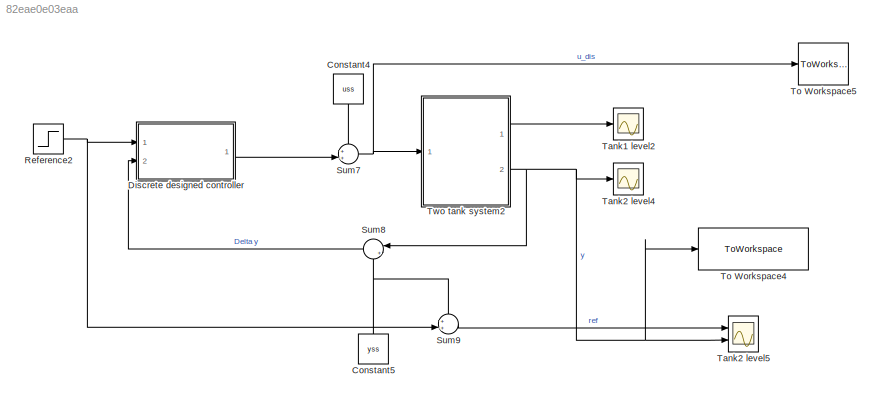
MODEL slx_82eae0e03eaa
KIND model
CONFIG AbsTol = auto
CONFIG EnableMultiTasking = off
CONFIG FixedStep = auto
CONFIG MaxStep = auto
CONFIG MinStep = auto
CONFIG RelTol = 1e-3
CONFIG SampleTimeConstraint = Unconstrained
CONFIG SolverName = VariableStepAuto
CONFIG StartTime = 0.0
CONFIG StopTime = 200
BLOCK [Constant] Constant4
  NameLocation = left
  Value = uss
BLOCK [Constant] Constant5
  NameLocation = right
  Value = yss
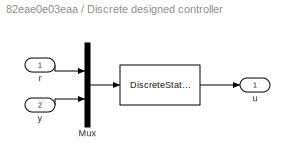
BLOCK [SubSystem] Discrete designed controller
  Ports = [2, 1]
  RequestExecContextInheritance = off
BLOCK [DiscreteStateSpace] Discrete designed controller/ 
  A = Phi-Gamma*L-K*C
  B = [lr * Gamma K]
  C = -L
  D = [lr 0]
  NameLocation = top
  SampleTime = Ts
BLOCK [Mux] Discrete designed controller/Mux
  DisplayOption = bar
  Inputs = 2
  Ports = [2, 1]
BLOCK [Inport] Discrete designed controller/r
BLOCK [Outport] Discrete designed controller/u
BLOCK [Inport] Discrete designed controller/y
  Port = 2
BLOCK [Step] Reference2
  After = 10
  SampleTime = 0
  Time = 25
BLOCK [Sum] Sum7
  Inputs = ++|
  NameLocation = top
  Ports = [2, 1]
BLOCK [Sum] Sum8
  Inputs = |+-
  Ports = [2, 1]
BLOCK [Sum] Sum9
  Inputs = ++|
  NameLocation = top
  Ports = [2, 1]
BLOCK [Scope] Tank1 level2
  Floating = off
  NumInputPorts = 1
  Ports = [1]
  ScopeSpecificationString = Simulink.scopes.TimeScopeBlockCfg('CurrentConfiguration', extmgr.ConfigurationSet(extmgr.Configuration('Core','General UI',true),extmgr.Configuration('Core','Source UI',true),extmgr.Configuration('Sources','WiredSimulink',true,'DataLoggingSaveFormat','StructureWithTime','DataLoggingLimitDataPoints',true,'DataLoggingDecimation','1','DataLoggingDecimateData',true,'DataLoggingVariableName','ScopeData...<+1711ch>
BLOCK [Scope] Tank2 level4
  Floating = off
  NumInputPorts = 1
  Ports = [1]
  ScopeSpecificationString = Simulink.scopes.TimeScopeBlockCfg('CurrentConfiguration', extmgr.ConfigurationSet(extmgr.Configuration('Core','General UI',true),extmgr.Configuration('Core','Source UI',true),extmgr.Configuration('Sources','WiredSimulink',true,'DataLoggingSaveFormat','StructureWithTime','DataLoggingDecimation','1','DataLoggingDecimateData',true,'DataLoggingVariableName','ScopeData2'),extmgr.Configuration('Visuals'...<+1689ch>
BLOCK [Scope] Tank2 level5
  Floating = off
  NumInputPorts = 2
  Ports = [2]
  ScopeSpecificationString = Simulink.scopes.TimeScopeBlockCfg('CurrentConfiguration', extmgr.ConfigurationSet(extmgr.Configuration('Core','General UI',true,'FigureColor',[1 1 1]),extmgr.Configuration('Core','Source UI',true),extmgr.Configuration('Sources','WiredSimulink',true,'DataLoggingSaveFormat','StructureWithTime','DataLoggingDecimation','1','DataLoggingDecimateData',true,'DataLoggingVariableName','ScopeData3'),extmgr.C...<+2076ch>
BLOCK [ToWorkspace] To Workspace4
  MaxDataPoints = inf
  Ports = [1]
  SampleTime = -1
  Save2DSignal = 2-D array (concatenate along first dimension)
  SaveFormat = Structure With Time
  VariableName = tanksDis_designed_out
BLOCK [ToWorkspace] To Workspace5
  MaxDataPoints = inf
  Ports = [1]
  SampleTime = -1
  Save2DSignal = 2-D array (concatenate along first dimension)
  SaveFormat = Structure With Time
  VariableName = u_dis_designed
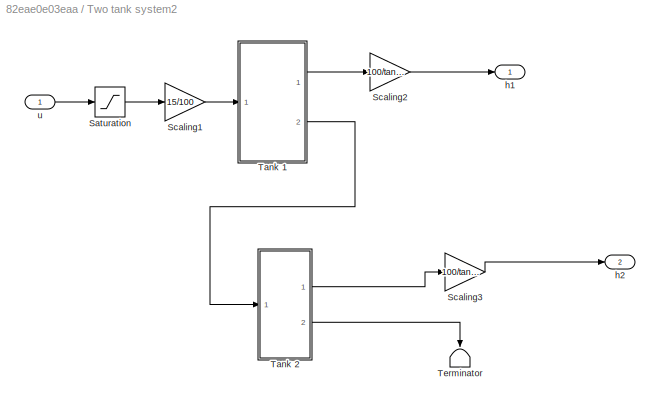
BLOCK [SubSystem] Two tank system2
  Ports = [1, 2]
  RequestExecContextInheritance = off
BLOCK [Saturate] Two tank system2/Saturation
  LowerLimit = -0
  UpperLimit = 100
BLOCK [Gain] Two tank system2/Scaling1
  Gain = 15/100
  OutDataTypeStr = Inherit: Same as input
  ParamDataTypeStr = Inherit: Same as input
  SaturateOnIntegerOverflow = on
BLOCK [Gain] Two tank system2/Scaling2
  Gain = 100/tank_H1
  OutDataTypeStr = Inherit: Same as input
  ParamDataTypeStr = Inherit: Same as input
  SaturateOnIntegerOverflow = on
BLOCK [Gain] Two tank system2/Scaling3
  Gain = 100/tank_H2
  OutDataTypeStr = Inherit: Same as input
  ParamDataTypeStr = Inherit: Same as input
  SaturateOnIntegerOverflow = on
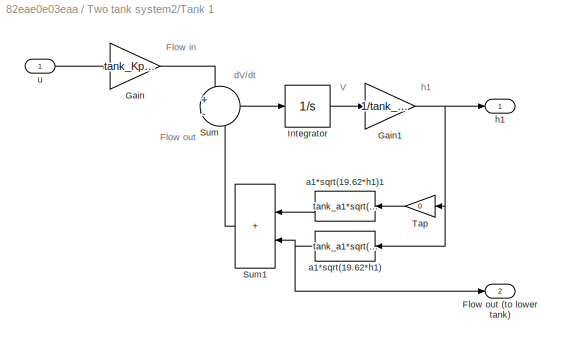
BLOCK [SubSystem] Two tank system2/Tank 1
  Ports = [1, 2]
  RequestExecContextInheritance = off
BLOCK [Outport] Two tank system2/Tank 1/Flow out  (to lower tank)
  Port = 2
BLOCK [Gain] Two tank system2/Tank 1/Gain
  Gain = tank_Kpump
  OutDataTypeStr = Inherit: Same as input
  ParamDataTypeStr = Inherit: Same as input
  SaturateOnIntegerOverflow = on
BLOCK [Gain] Two tank system2/Tank 1/Gain1
  Gain = 1/tank_A1
  OutDataTypeStr = Inherit: Same as input
  ParamDataTypeStr = Inherit: Same as input
  SaturateOnIntegerOverflow = on
BLOCK [Integrator] Two tank system2/Tank 1/Integrator
  InitialCondition = tank_init_h1*tank_A1
  LimitOutput = on
  LowerSaturationLimit = 0
  Ports = [1, 1]
  UpperSaturationLimit = tank_H1*tank_A1
BLOCK [Sum] Two tank system2/Tank 1/Sum
  InputSameDT = on
  Inputs = +-
  OutDataTypeStr = Inherit: Same as first input
  Ports = [2, 1]
  SaturateOnIntegerOverflow = on
BLOCK [Sum] Two tank system2/Tank 1/Sum1
  IconShape = rectangular
  InputSameDT = on
  NameLocation = top
  OutDataTypeStr = Inherit: Same as first input
  Ports = [2, 1]
  SaturateOnIntegerOverflow = on
BLOCK [Gain] Two tank system2/Tank 1/Tap
  Gain = 0
  NameLocation = top
  OutDataTypeStr = Inherit: Same as input
  ParamDataTypeStr = Inherit: Same as input
  SaturateOnIntegerOverflow = on
BLOCK [Fcn] Two tank system2/Tank 1/a1*sqrt(19.62*h1)
  Expr = tank_a1*sqrt(19.62*u)
BLOCK [Fcn] Two tank system2/Tank 1/a1*sqrt(19.62*h1)1
  Expr = tank_a1*sqrt(19.62*u)
  NameLocation = top
BLOCK [Outport] Two tank system2/Tank 1/h1
BLOCK [Inport] Two tank system2/Tank 1/u
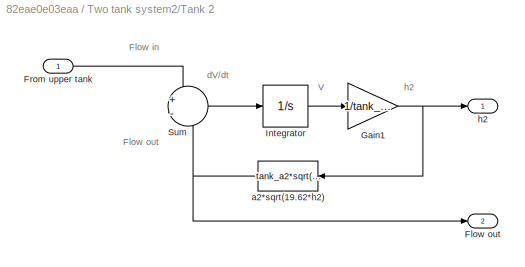
BLOCK [SubSystem] Two tank system2/Tank 2
  Ports = [1, 2]
  RequestExecContextInheritance = off
BLOCK [Outport] Two tank system2/Tank 2/Flow out
  Port = 2
BLOCK [Inport] Two tank system2/Tank 2/From upper tank
BLOCK [Gain] Two tank system2/Tank 2/Gain1
  Gain = 1/tank_A2
  OutDataTypeStr = Inherit: Same as input
  ParamDataTypeStr = Inherit: Same as input
  SaturateOnIntegerOverflow = on
BLOCK [Integrator] Two tank system2/Tank 2/Integrator
  InitialCondition = tank_init_h2*tank_A2
  LimitOutput = on
  LowerSaturationLimit = 0
  Ports = [1, 1]
  UpperSaturationLimit = tank_H2*tank_A2
BLOCK [Sum] Two tank system2/Tank 2/Sum
  InputSameDT = on
  Inputs = +-
  OutDataTypeStr = Inherit: Same as first input
  Ports = [2, 1]
  SaturateOnIntegerOverflow = on
BLOCK [Fcn] Two tank system2/Tank 2/a2*sqrt(19.62*h2)
  Expr = tank_a2*sqrt(19.62*u)
BLOCK [Outport] Two tank system2/Tank 2/h2
BLOCK [Terminator] Two tank system2/Terminator
  NameLocation = right
BLOCK [Outport] Two tank system2/h1
BLOCK [Outport] Two tank system2/h2
  Port = 2
BLOCK [Inport] Two tank system2/u
ANNOTATION Two tank system2/Tank 1: Flow in
ANNOTATION Two tank system2/Tank 1: Flow out
ANNOTATION Two tank system2/Tank 1: V
ANNOTATION Two tank system2/Tank 1: dV/dt
ANNOTATION Two tank system2/Tank 1: h1
ANNOTATION Two tank system2/Tank 2: Flow in
ANNOTATION Two tank system2/Tank 2: Flow out
ANNOTATION Two tank system2/Tank 2: V
ANNOTATION Two tank system2/Tank 2: dV/dt
ANNOTATION Two tank system2/Tank 2: h2
LINE Constant4:1 -> Sum7:1
NET Constant5:1 -> Sum8:2, Sum9:1
LINE Discrete designed controller/ :1 -> Discrete designed controller/u:1
LINE Discrete designed controller/Mux:1 -> Discrete designed controller/ :1
LINE Discrete designed controller/r:1 -> Discrete designed controller/Mux:1
LINE Discrete designed controller/y:1 -> Discrete designed controller/Mux:2
LINE Discrete designed controller:1 -> Sum7:2
NET Reference2:1 -> Discrete designed controller:1, Sum9:2
NET Sum7:1 -> To Workspace5:1, Two tank system2:1
LINE Sum8:1 -> Discrete designed controller:2
LINE Sum9:1 -> Tank2 level5:1
LINE Two tank system2/Saturation:1 -> Two tank system2/Scaling1:1
LINE Two tank system2/Scaling1:1 -> Two tank system2/Tank 1:1
LINE Two tank system2/Scaling2:1 -> Two tank system2/h1:1
LINE Two tank system2/Scaling3:1 -> Two tank system2/h2:1
NET Two tank system2/Tank 1/Gain1:1 -> Two tank system2/Tank 1/Tap:1, Two tank system2/Tank 1/a1*sqrt(19.62*h1):1, Two tank system2/Tank 1/h1:1
LINE Two tank system2/Tank 1/Gain:1 -> Two tank system2/Tank 1/Sum:1
LINE Two tank system2/Tank 1/Integrator:1 -> Two tank system2/Tank 1/Gain1:1
LINE Two tank system2/Tank 1/Sum1:1 -> Two tank system2/Tank 1/Sum:2
LINE Two tank system2/Tank 1/Sum:1 -> Two tank system2/Tank 1/Integrator:1
LINE Two tank system2/Tank 1/Tap:1 -> Two tank system2/Tank 1/a1*sqrt(19.62*h1)1:1
LINE Two tank system2/Tank 1/a1*sqrt(19.62*h1)1:1 -> Two tank system2/Tank 1/Sum1:1
NET Two tank system2/Tank 1/a1*sqrt(19.62*h1):1 -> Two tank system2/Tank 1/Flow out  (to lower tank):1, Two tank system2/Tank 1/Sum1:2
LINE Two tank system2/Tank 1/u:1 -> Two tank system2/Tank 1/Gain:1
LINE Two tank system2/Tank 1:1 -> Two tank system2/Scaling2:1
LINE Two tank system2/Tank 1:2 -> Two tank system2/Tank 2:1
LINE Two tank system2/Tank 2/From upper tank:1 -> Two tank system2/Tank 2/Sum:1
NET Two tank system2/Tank 2/Gain1:1 -> Two tank system2/Tank 2/a2*sqrt(19.62*h2):1, Two tank system2/Tank 2/h2:1
LINE Two tank system2/Tank 2/Integrator:1 -> Two tank system2/Tank 2/Gain1:1
LINE Two tank system2/Tank 2/Sum:1 -> Two tank system2/Tank 2/Integrator:1
NET Two tank system2/Tank 2/a2*sqrt(19.62*h2):1 -> Two tank system2/Tank 2/Flow out:1, Two tank system2/Tank 2/Sum:2
LINE Two tank system2/Tank 2:1 -> Two tank system2/Scaling3:1
LINE Two tank system2/Tank 2:2 -> Two tank system2/Terminator:1
LINE Two tank system2/u:1 -> Two tank system2/Saturation:1
LINE Two tank system2:1 -> Tank1 level2:1
NET Two tank system2:2 -> Sum8:1, Tank2 level4:1, Tank2 level5:2, To Workspace4:1
note: NET lines group one-source signal fan-out (src -> all destinations, sorted); 1:1 wires keep LINE
